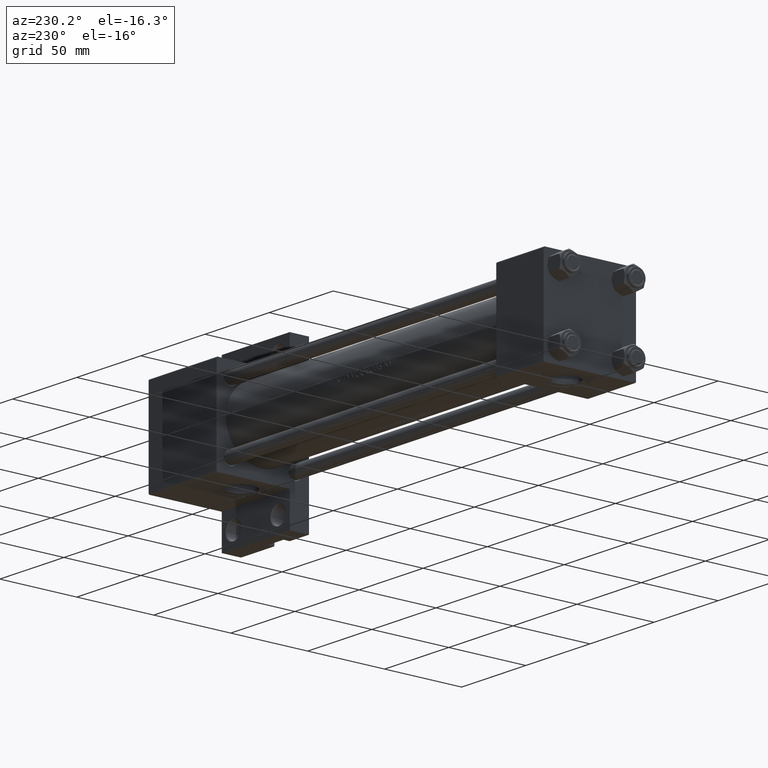
[diagram: clean part render]
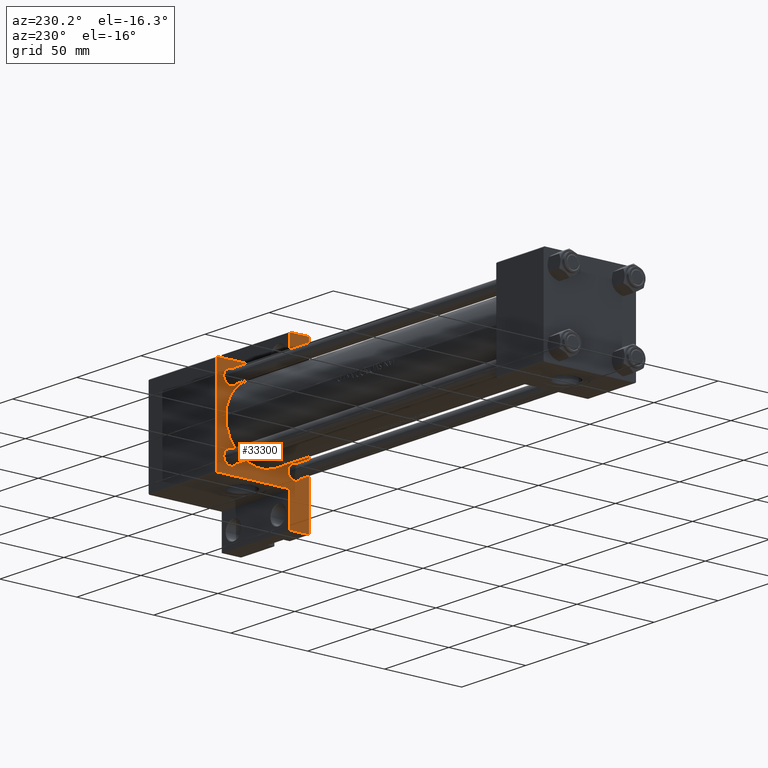
[diagram: same view with one face highlighted and labeled with its STEP entity id]
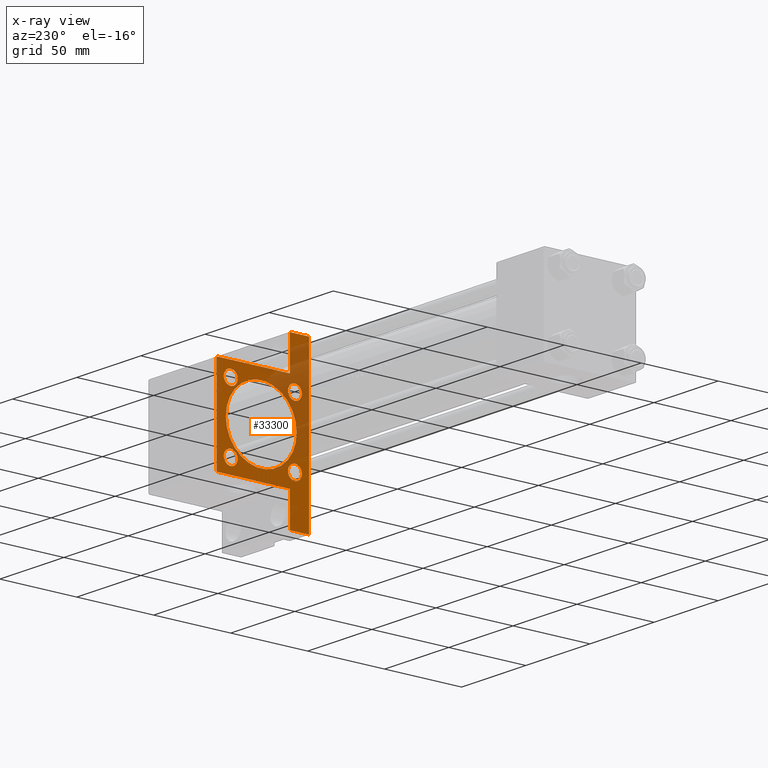
[diagram: x-ray of the same camera — body ghosted, the highlighted face saturated]
A machine part, auxiliary view. The second image highlights one B-rep face of the part: STEP entity #33300.
The next image is the same camera in x-ray: the body ghosted, the highlighted face saturated — about 33% of this face is hidden behind the body in this view.
In plain terms, the highlighted planar face has unit normal (-1, 0, -0).
Its self-contained STEP definition (entity closure, byte-faithful):
#71 = CARTESIAN_POINT ( 'NONE',  ( 255.0000000000000000, 20.84999999999999787, -16.34999999999999432 ) ) ;
#185 = DIRECTION ( 'NONE',  ( 0.000000000000000000, 0.000000000000000000, -1.000000000000000000 ) ) ;
#237 = VERTEX_POINT ( 'NONE', #47649 ) ;
#430 = VECTOR ( 'NONE', #12537, 1000.000000000000000 ) ;
#641 = AXIS2_PLACEMENT_3D ( 'NONE', #20981, #2032, #36037 ) ;
#888 = DIRECTION ( 'NONE',  ( 0.000000000000000000, 0.000000000000000000, 1.000000000000000000 ) ) ;
#1275 = VERTEX_POINT ( 'NONE', #41474 ) ;
#1278 = DIRECTION ( 'NONE',  ( 0.000000000000000000, 0.000000000000000000, -1.000000000000000000 ) ) ;
#1606 = DIRECTION ( 'NONE',  ( 0.000000000000000000, 0.000000000000000000, 1.000000000000000000 ) ) ;
#1720 = CARTESIAN_POINT ( 'NONE',  ( 255.0000000000000000, -30.00000000000000000, 29.99999999999999289 ) ) ;
#1888 = VERTEX_POINT ( 'NONE', #35706 ) ;
#2032 = DIRECTION ( 'NONE',  ( 1.000000000000000000, -0.000000000000000000, 0.000000000000000000 ) ) ;
#2404 = ORIENTED_EDGE ( 'NONE', *, *, #8247, .T. ) ;
#2567 = EDGE_CURVE ( 'NONE', #10591, #8254, #48102, .T. ) ;
#3227 = AXIS2_PLACEMENT_3D ( 'NONE', #29415, #47656, #14116 ) ;
#3231 = CIRCLE ( 'NONE', #41027, 23.00000000000000000 ) ;
#3544 = VERTEX_POINT ( 'NONE', #40748 ) ;
#3835 = FACE_BOUND ( 'NONE', #44945, .T. ) ;
#3977 = LINE ( 'NONE', #31095, #35556 ) ;
#4250 = LINE ( 'NONE', #4967, #4699 ) ;
#4436 = LINE ( 'NONE', #42153, #29796 ) ;
#4672 = DIRECTION ( 'NONE',  ( 0.000000000000000000, 0.7071067811865474617, -0.7071067811865474617 ) ) ;
#4699 = VECTOR ( 'NONE', #1278, 1000.000000000000000 ) ;
#4878 = CIRCLE ( 'NONE', #39511, 4.500000000000007105 ) ;
#4947 = DIRECTION ( 'NONE',  ( -0.000000000000000000, 0.7071067811865474617, 0.7071067811865474617 ) ) ;
#4967 = CARTESIAN_POINT ( 'NONE',  ( 255.0000000000000000, -51.50000000000002132, -17.49999999999999645 ) ) ;
#5277 = CARTESIAN_POINT ( 'NONE',  ( 255.0000000000000000, 20.84999999999999787, 25.35000000000000853 ) ) ;
#5429 = ORIENTED_EDGE ( 'NONE', *, *, #41662, .T. ) ;
#5851 = DIRECTION ( 'NONE',  ( 0.000000000000000000, 0.000000000000000000, 1.000000000000000000 ) ) ;
#6814 = DIRECTION ( 'NONE',  ( -1.000000000000000000, 0.000000000000000000, -0.000000000000000000 ) ) ;
#6905 = CARTESIAN_POINT ( 'NONE',  ( 255.0000000000000000, -1.224646799147354686E-16, 1.000000000000000888 ) ) ;
#7081 = DIRECTION ( 'NONE',  ( 0.000000000000000000, 0.000000000000000000, -1.000000000000000000 ) ) ;
#7228 = DIRECTION ( 'NONE',  ( 0.000000000000000000, 0.000000000000000000, 1.000000000000000000 ) ) ;
#7533 = FACE_BOUND ( 'NONE', #42135, .T. ) ;
#7792 = ORIENTED_EDGE ( 'NONE', *, *, #44394, .T. ) ;
#8028 = DIRECTION ( 'NONE',  ( 0.000000000000000000, -1.000000000000000000, -1.156482317317871478E-16 ) ) ;
#8247 = EDGE_CURVE ( 'NONE', #39696, #23370, #3977, .T. ) ;
#8254 = VERTEX_POINT ( 'NONE', #38008 ) ;
#9007 = DIRECTION ( 'NONE',  ( 0.000000000000000000, 0.000000000000000000, 1.000000000000000000 ) ) ;
#10059 = AXIS2_PLACEMENT_3D ( 'NONE', #47021, #43323, #5851 ) ;
#10265 = PLANE ( 'NONE',  #12520 ) ;
#10376 = AXIS2_PLACEMENT_3D ( 'NONE', #20735, #17529, #28141 ) ;
#10591 = VERTEX_POINT ( 'NONE', #5277 ) ;
#10720 = EDGE_LOOP ( 'NONE', ( #35319, #42895 ) ) ;
#11523 = EDGE_CURVE ( 'NONE', #35470, #36706, #39610, .T. ) ;
#12520 = AXIS2_PLACEMENT_3D ( 'NONE', #25305, #6814, #26018 ) ;
#12537 = DIRECTION ( 'NONE',  ( 0.000000000000000000, 1.000000000000000000, 0.000000000000000000 ) ) ;
#12998 = VERTEX_POINT ( 'NONE', #14791 ) ;
#13153 = CARTESIAN_POINT ( 'NONE',  ( 255.0000000000000000, 2.694222958124176809E-15, -22.00000000000000000 ) ) ;
#13397 = ORIENTED_EDGE ( 'NONE', *, *, #37137, .T. ) ;
#13420 = DIRECTION ( 'NONE',  ( 1.000000000000000000, -0.000000000000000000, 0.000000000000000000 ) ) ;
#13849 = EDGE_CURVE ( 'NONE', #3544, #23370, #38105, .T. ) ;
#14116 = DIRECTION ( 'NONE',  ( 0.000000000000000000, 0.000000000000000000, 1.000000000000000000 ) ) ;
#14490 = EDGE_CURVE ( 'NONE', #25080, #20095, #28142, .T. ) ;
#14791 = CARTESIAN_POINT ( 'NONE',  ( 255.0000000000000000, -51.50000000000002132, -17.49999999999999645 ) ) ;
#14940 = LINE ( 'NONE', #29993, #15446 ) ;
#15015 = VECTOR ( 'NONE', #37826, 1000.000000000000000 ) ;
#15446 = VECTOR ( 'NONE', #37628, 1000.000000000000000 ) ;
#15545 = EDGE_CURVE ( 'NONE', #3544, #237, #4436, .T. ) ;
#15820 = AXIS2_PLACEMENT_3D ( 'NONE', #6905, #21912, #17513 ) ;
#15850 = VECTOR ( 'NONE', #23884, 1000.000000000000000 ) ;
#16146 = CARTESIAN_POINT ( 'NONE',  ( 255.0000000000000000, 20.84999999999999787, -20.85000000000000142 ) ) ;
#16380 = AXIS2_PLACEMENT_3D ( 'NONE', #16146, #20321, #888 ) ;
#16993 = ORIENTED_EDGE ( 'NONE', *, *, #23072, .T. ) ;
#17206 = CARTESIAN_POINT ( 'NONE',  ( 255.0000000000000000, -51.50000000000002132, -17.49999999999999645 ) ) ;
#17513 = DIRECTION ( 'NONE',  ( 0.000000000000000000, 0.000000000000000000, -1.000000000000000000 ) ) ;
#17529 = DIRECTION ( 'NONE',  ( 1.000000000000000000, -0.000000000000000000, 0.000000000000000000 ) ) ;
#17883 = EDGE_CURVE ( 'NONE', #8254, #10591, #41101, .T. ) ;
#18411 = LINE ( 'NONE', #33459, #25290 ) ;
#18619 = FACE_BOUND ( 'NONE', #19258, .T. ) ;
#18889 = CARTESIAN_POINT ( 'NONE',  ( 255.0000000000000000, -1.224646799147354686E-16, 1.000000000000000888 ) ) ;
#19258 = EDGE_LOOP ( 'NONE', ( #33629, #19588 ) ) ;
#19409 = ORIENTED_EDGE ( 'NONE', *, *, #24666, .T. ) ;
#19559 = ORIENTED_EDGE ( 'NONE', *, *, #13849, .F. ) ;
#19588 = ORIENTED_EDGE ( 'NONE', *, *, #31124, .T. ) ;
#20095 = VERTEX_POINT ( 'NONE', #21655 ) ;
#20321 = DIRECTION ( 'NONE',  ( 1.000000000000000000, -0.000000000000000000, 0.000000000000000000 ) ) ;
#20694 = AXIS2_PLACEMENT_3D ( 'NONE', #24991, #13420, #1606 ) ;
#20735 = CARTESIAN_POINT ( 'NONE',  ( 255.0000000000000000, 20.84999999999999787, 20.85000000000000142 ) ) ;
#20981 = CARTESIAN_POINT ( 'NONE',  ( 255.0000000000000000, -20.84999999999999076, 20.85000000000000497 ) ) ;
#21545 = VERTEX_POINT ( 'NONE', #37428 ) ;
#21581 = ORIENTED_EDGE ( 'NONE', *, *, #42298, .T. ) ;
#21588 = FACE_BOUND ( 'NONE', #10720, .T. ) ;
#21655 = CARTESIAN_POINT ( 'NONE',  ( 255.0000000000000000, 20.84999999999999787, -25.35000000000000853 ) ) ;
#21859 = CIRCLE ( 'NONE', #641, 4.500000000000007105 ) ;
#21868 = CARTESIAN_POINT ( 'NONE',  ( 255.0000000000000000, 51.49999999999997868, -17.49999999999999645 ) ) ;
#21912 = DIRECTION ( 'NONE',  ( 1.000000000000000000, 0.000000000000000000, 0.000000000000000000 ) ) ;
#22752 = CARTESIAN_POINT ( 'NONE',  ( 255.0000000000000000, -1.224646799147354686E-16, 24.00000000000000000 ) ) ;
#22826 = DIRECTION ( 'NONE',  ( 1.000000000000000000, 0.000000000000000000, 0.000000000000000000 ) ) ;
#22938 = EDGE_CURVE ( 'NONE', #47703, #31261, #14940, .T. ) ;
#23072 = EDGE_CURVE ( 'NONE', #1275, #21545, #30420, .T. ) ;
#23370 = VERTEX_POINT ( 'NONE', #39700 ) ;
#23884 = DIRECTION ( 'NONE',  ( 0.000000000000000000, 0.000000000000000000, -1.000000000000000000 ) ) ;
#24031 = CARTESIAN_POINT ( 'NONE',  ( 255.0000000000000000, -20.84999999999999076, -20.85000000000000497 ) ) ;
#24162 = VERTEX_POINT ( 'NONE', #48617 ) ;
#24666 = EDGE_CURVE ( 'NONE', #12998, #32704, #31524, .T. ) ;
#24991 = CARTESIAN_POINT ( 'NONE',  ( 255.0000000000000000, -20.84999999999999076, 20.85000000000000497 ) ) ;
#25080 = VERTEX_POINT ( 'NONE', #71 ) ;
#25290 = VECTOR ( 'NONE', #7081, 1000.000000000000000 ) ;
#25305 = CARTESIAN_POINT ( 'NONE',  ( 255.0000000000000000, 0.000000000000000000, 0.000000000000000000 ) ) ;
#25949 = CARTESIAN_POINT ( 'NONE',  ( 255.0000000000000000, -20.84999999999999076, -20.85000000000000497 ) ) ;
#26018 = DIRECTION ( 'NONE',  ( -0.000000000000000000, 0.000000000000000000, 1.000000000000000000 ) ) ;
#28141 = DIRECTION ( 'NONE',  ( 0.000000000000000000, 0.000000000000000000, 1.000000000000000000 ) ) ;
#28142 = CIRCLE ( 'NONE', #10059, 4.500000000000007105 ) ;
#28864 = VERTEX_POINT ( 'NONE', #22752 ) ;
#29259 = ORIENTED_EDGE ( 'NONE', *, *, #30702, .T. ) ;
#29415 = CARTESIAN_POINT ( 'NONE',  ( 255.0000000000000000, 20.84999999999999787, 20.85000000000000142 ) ) ;
#29624 = CARTESIAN_POINT ( 'NONE',  ( 255.0000000000000000, -20.84999999999999076, 25.35000000000001208 ) ) ;
#29796 = VECTOR ( 'NONE', #4672, 1000.000000000000114 ) ;
#29993 = CARTESIAN_POINT ( 'NONE',  ( 255.0000000000000000, 51.49999999999997868, -17.49999999999999645 ) ) ;
#30125 = EDGE_LOOP ( 'NONE', ( #19559, #44656, #21581, #13397, #32878, #7792, #36971, #19409, #43331, #2404 ) ) ;
#30420 = CIRCLE ( 'NONE', #44593, 4.500000000000007105 ) ;
#30702 = EDGE_CURVE ( 'NONE', #36706, #35470, #21859, .T. ) ;
#30972 = LINE ( 'NONE', #31199, #34837 ) ;
#31095 = CARTESIAN_POINT ( 'NONE',  ( 255.0000000000000000, -29.74999999999999645, 29.74999999999999645 ) ) ;
#31124 = EDGE_CURVE ( 'NONE', #20095, #25080, #31347, .T. ) ;
#31199 = CARTESIAN_POINT ( 'NONE',  ( 255.0000000000000000, 30.00000000000000000, -29.99999999999999289 ) ) ;
#31261 = VERTEX_POINT ( 'NONE', #35856 ) ;
#31347 = CIRCLE ( 'NONE', #16380, 4.500000000000007105 ) ;
#31524 = LINE ( 'NONE', #17206, #430 ) ;
#32704 = VERTEX_POINT ( 'NONE', #33539 ) ;
#32878 = ORIENTED_EDGE ( 'NONE', *, *, #22938, .T. ) ;
#32976 = CARTESIAN_POINT ( 'NONE',  ( 255.0000000000000000, -20.84999999999999076, 16.34999999999999787 ) ) ;
#33300 = ADVANCED_FACE ( 'NONE', ( #7533, #21588, #18619, #3835, #33664, #40358 ), #10265, .T. ) ;
#33335 = ORIENTED_EDGE ( 'NONE', *, *, #11523, .T. ) ;
#33459 = CARTESIAN_POINT ( 'NONE',  ( 255.0000000000000000, 30.00000000000000000, 30.00000000000000000 ) ) ;
#33539 = CARTESIAN_POINT ( 'NONE',  ( 255.0000000000000000, -30.00000000000000000, -17.49999999999999645 ) ) ;
#33629 = ORIENTED_EDGE ( 'NONE', *, *, #14490, .T. ) ;
#33664 = FACE_BOUND ( 'NONE', #46056, .T. ) ;
#34652 = DIRECTION ( 'NONE',  ( 0.000000000000000000, -1.000000000000000000, -1.156482317317871478E-16 ) ) ;
#34837 = VECTOR ( 'NONE', #34652, 1000.000000000000000 ) ;
#35319 = ORIENTED_EDGE ( 'NONE', *, *, #2567, .T. ) ;
#35337 = ORIENTED_EDGE ( 'NONE', *, *, #40991, .T. ) ;
#35470 = VERTEX_POINT ( 'NONE', #29624 ) ;
#35556 = VECTOR ( 'NONE', #4947, 1000.000000000000114 ) ;
#35706 = CARTESIAN_POINT ( 'NONE',  ( 255.0000000000000000, 30.00000000000000000, -17.49999999999998224 ) ) ;
#35856 = CARTESIAN_POINT ( 'NONE',  ( 255.0000000000000000, 51.49999999999997868, -29.99999999999999645 ) ) ;
#36037 = DIRECTION ( 'NONE',  ( 0.000000000000000000, 0.000000000000000000, 1.000000000000000000 ) ) ;
#36706 = VERTEX_POINT ( 'NONE', #32976 ) ;
#36971 = ORIENTED_EDGE ( 'NONE', *, *, #38962, .F. ) ;
#37076 = CIRCLE ( 'NONE', #15820, 23.00000000000000000 ) ;
#37137 = EDGE_CURVE ( 'NONE', #1888, #47703, #37334, .T. ) ;
#37334 = LINE ( 'NONE', #41288, #15015 ) ;
#37428 = CARTESIAN_POINT ( 'NONE',  ( 255.0000000000000000, -20.84999999999999076, -25.35000000000001208 ) ) ;
#37628 = DIRECTION ( 'NONE',  ( 0.000000000000000000, 0.000000000000000000, -1.000000000000000000 ) ) ;
#37826 = DIRECTION ( 'NONE',  ( -0.000000000000000000, 1.000000000000000000, -0.000000000000000000 ) ) ;
#38008 = CARTESIAN_POINT ( 'NONE',  ( 255.0000000000000000, 20.84999999999999787, 16.34999999999999432 ) ) ;
#38105 = LINE ( 'NONE', #45493, #45278 ) ;
#38962 = EDGE_CURVE ( 'NONE', #12998, #24162, #4250, .T. ) ;
#39324 = DIRECTION ( 'NONE',  ( 1.000000000000000000, -0.000000000000000000, 0.000000000000000000 ) ) ;
#39511 = AXIS2_PLACEMENT_3D ( 'NONE', #25949, #41007, #7228 ) ;
#39610 = CIRCLE ( 'NONE', #20694, 4.500000000000007105 ) ;
#39696 = VERTEX_POINT ( 'NONE', #39974 ) ;
#39700 = CARTESIAN_POINT ( 'NONE',  ( 255.0000000000000000, -29.50000000000000000, 29.99999999999999289 ) ) ;
#39974 = CARTESIAN_POINT ( 'NONE',  ( 255.0000000000000000, -30.00000000000000000, 29.49999999999999289 ) ) ;
#40358 = FACE_OUTER_BOUND ( 'NONE', #30125, .T. ) ;
#40748 = CARTESIAN_POINT ( 'NONE',  ( 255.0000000000000000, 29.50000000000002487, 30.00000000000000000 ) ) ;
#40991 = EDGE_CURVE ( 'NONE', #47236, #28864, #3231, .T. ) ;
#41007 = DIRECTION ( 'NONE',  ( 1.000000000000000000, -0.000000000000000000, 0.000000000000000000 ) ) ;
#41027 = AXIS2_PLACEMENT_3D ( 'NONE', #18889, #22826, #185 ) ;
#41101 = CIRCLE ( 'NONE', #10376, 4.500000000000007105 ) ;
#41288 = CARTESIAN_POINT ( 'NONE',  ( 255.0000000000000000, 51.49999999999997868, -17.49999999999999645 ) ) ;
#41474 = CARTESIAN_POINT ( 'NONE',  ( 255.0000000000000000, -20.84999999999999076, -16.34999999999999787 ) ) ;
#41662 = EDGE_CURVE ( 'NONE', #28864, #47236, #37076, .T. ) ;
#41727 = ORIENTED_EDGE ( 'NONE', *, *, #43720, .T. ) ;
#42135 = EDGE_LOOP ( 'NONE', ( #33335, #29259 ) ) ;
#42153 = CARTESIAN_POINT ( 'NONE',  ( 255.0000000000000000, 29.75000000000001776, 29.75000000000001776 ) ) ;
#42298 = EDGE_CURVE ( 'NONE', #237, #1888, #18411, .T. ) ;
#42635 = LINE ( 'NONE', #1720, #15850 ) ;
#42895 = ORIENTED_EDGE ( 'NONE', *, *, #17883, .T. ) ;
#43323 = DIRECTION ( 'NONE',  ( 1.000000000000000000, -0.000000000000000000, 0.000000000000000000 ) ) ;
#43331 = ORIENTED_EDGE ( 'NONE', *, *, #48369, .F. ) ;
#43720 = EDGE_CURVE ( 'NONE', #21545, #1275, #4878, .T. ) ;
#44394 = EDGE_CURVE ( 'NONE', #31261, #24162, #30972, .T. ) ;
#44593 = AXIS2_PLACEMENT_3D ( 'NONE', #24031, #39324, #9007 ) ;
#44656 = ORIENTED_EDGE ( 'NONE', *, *, #15545, .T. ) ;
#44945 = EDGE_LOOP ( 'NONE', ( #16993, #41727 ) ) ;
#45278 = VECTOR ( 'NONE', #8028, 1000.000000000000000 ) ;
#45493 = CARTESIAN_POINT ( 'NONE',  ( 255.0000000000000000, 30.00000000000000000, 30.00000000000000000 ) ) ;
#46056 = EDGE_LOOP ( 'NONE', ( #5429, #35337 ) ) ;
#47021 = CARTESIAN_POINT ( 'NONE',  ( 255.0000000000000000, 20.84999999999999787, -20.85000000000000142 ) ) ;
#47236 = VERTEX_POINT ( 'NONE', #13153 ) ;
#47649 = CARTESIAN_POINT ( 'NONE',  ( 255.0000000000000000, 30.00000000000000000, 29.50000000000002487 ) ) ;
#47656 = DIRECTION ( 'NONE',  ( 1.000000000000000000, -0.000000000000000000, 0.000000000000000000 ) ) ;
#47703 = VERTEX_POINT ( 'NONE', #21868 ) ;
#48102 = CIRCLE ( 'NONE', #3227, 4.500000000000007105 ) ;
#48369 = EDGE_CURVE ( 'NONE', #39696, #32704, #42635, .T. ) ;
#48617 = CARTESIAN_POINT ( 'NONE',  ( 255.0000000000000000, -51.50000000000002132, -29.99999999999999645 ) ) ;